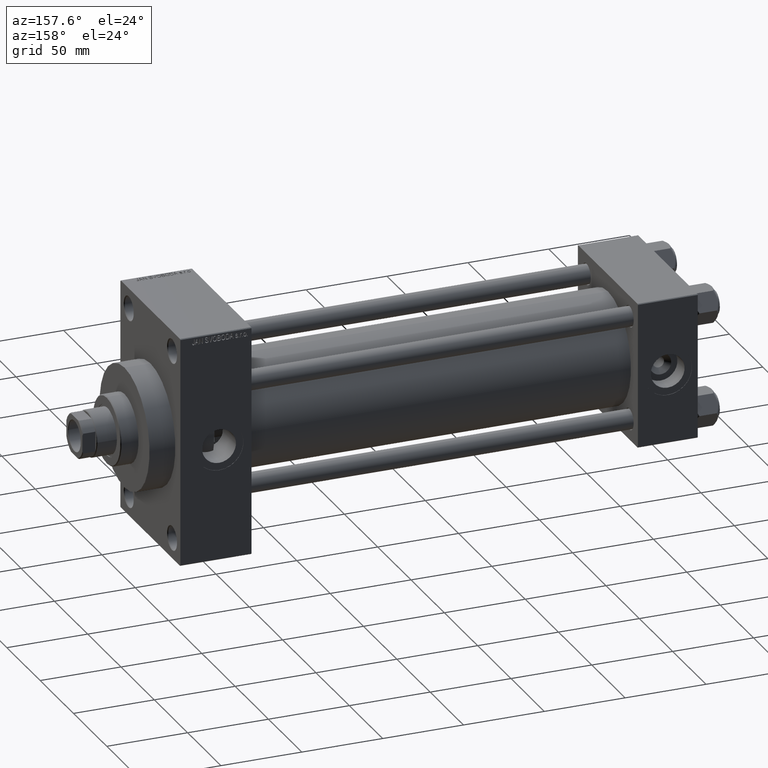
[diagram: clean part render]
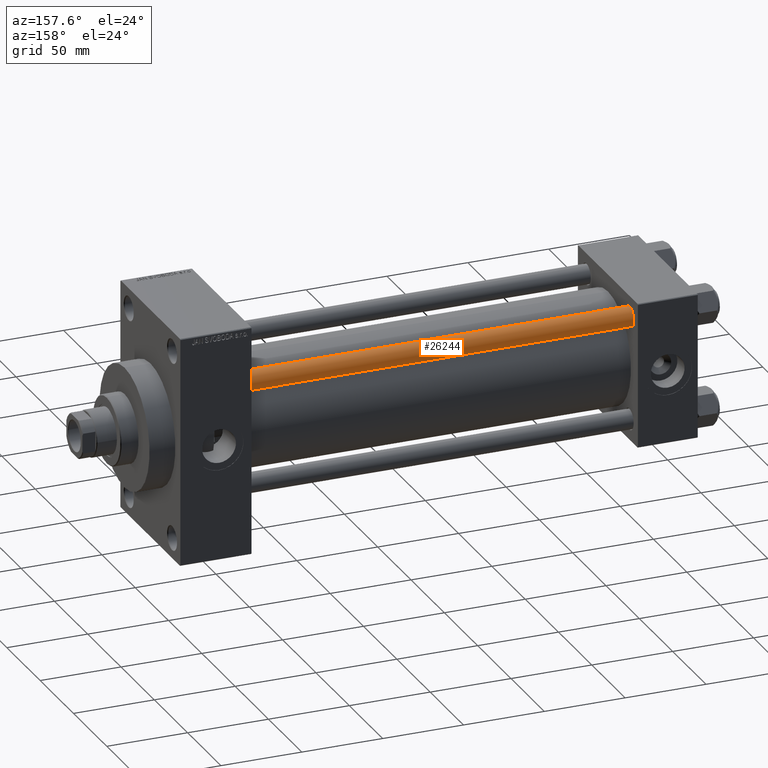
[diagram: same view with one face highlighted and labeled with its STEP entity id]
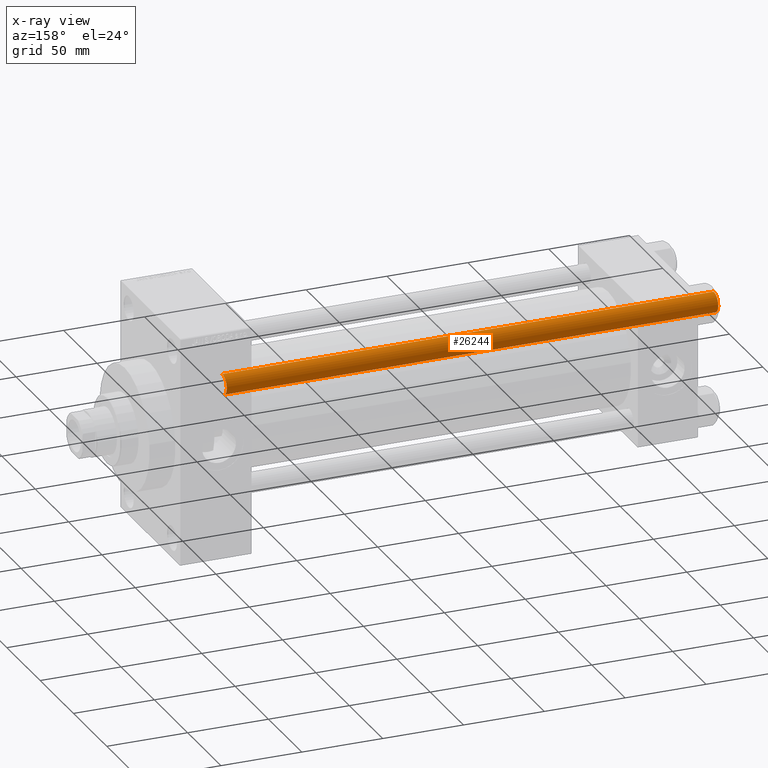
[diagram: x-ray of the same camera — body ghosted, the highlighted face saturated]
A machine part, auxiliary view. The second image highlights one B-rep face of the part: STEP entity #26244.
The next image is the same camera in x-ray: the body ghosted, the highlighted face saturated — about 0% of this face is hidden behind the body in this view.
In plain terms, the highlighted cylindrical surface (edge-blend (fillet) strip) has radius 6 mm, axis along (-1, -0, 0).
Its self-contained STEP definition (entity closure, byte-faithful):
#65 = CARTESIAN_POINT ( 'NONE',  ( 0.000000000000000000, 0.000000000000000000, 305.0000000000000000 ) ) ;
#1472 = CARTESIAN_POINT ( 'NONE',  ( -6.000000000000000888, 0.000000000000000000, 304.5000000000000000 ) ) ;
#3404 = CYLINDRICAL_SURFACE ( 'NONE', #20236, 6.000000000000000888 ) ;
#3856 = DIRECTION ( 'NONE',  ( 1.000000000000000000, 0.000000000000000000, 0.000000000000000000 ) ) ;
#5360 = CARTESIAN_POINT ( 'NONE',  ( 6.000000000000000888, 7.347880794884120722E-16, 0.5000000000000004441 ) ) ;
#5750 = AXIS2_PLACEMENT_3D ( 'NONE', #31550, #12933, #31078 ) ;
#5988 = AXIS2_PLACEMENT_3D ( 'NONE', #40145, #15058, #3856 ) ;
#8247 = EDGE_CURVE ( 'NONE', #19464, #33449, #41802, .T. ) ;
#12933 = DIRECTION ( 'NONE',  ( 0.000000000000000000, 0.000000000000000000, -1.000000000000000000 ) ) ;
#13560 = CARTESIAN_POINT ( 'NONE',  ( -6.000000000000000888, 0.000000000000000000, 0.5000000000000004441 ) ) ;
#14081 = LINE ( 'NONE', #29125, #32040 ) ;
#14850 = FACE_OUTER_BOUND ( 'NONE', #35730, .T. ) ;
#15058 = DIRECTION ( 'NONE',  ( -0.000000000000000000, -0.000000000000000000, 1.000000000000000000 ) ) ;
#16302 = ORIENTED_EDGE ( 'NONE', *, *, #8247, .T. ) ;
#16529 = ORIENTED_EDGE ( 'NONE', *, *, #42837, .F. ) ;
#17326 = ORIENTED_EDGE ( 'NONE', *, *, #46188, .T. ) ;
#18102 = LINE ( 'NONE', #29559, #38798 ) ;
#19464 = VERTEX_POINT ( 'NONE', #5360 ) ;
#20236 = AXIS2_PLACEMENT_3D ( 'NONE', #65, #21551, #32528 ) ;
#21551 = DIRECTION ( 'NONE',  ( -0.000000000000000000, -0.000000000000000000, -1.000000000000000000 ) ) ;
#24595 = CARTESIAN_POINT ( 'NONE',  ( 6.000000000000000888, 7.347880794884120722E-16, 304.5000000000000000 ) ) ;
#26244 = ADVANCED_FACE ( 'NONE', ( #14850 ), #3404, .T. ) ;
#29125 = CARTESIAN_POINT ( 'NONE',  ( 6.000000000000000888, 7.347880794884120722E-16, 305.0000000000000000 ) ) ;
#29559 = CARTESIAN_POINT ( 'NONE',  ( -6.000000000000000888, 0.000000000000000000, 305.0000000000000000 ) ) ;
#30454 = EDGE_CURVE ( 'NONE', #33005, #35109, #43881, .T. ) ;
#31078 = DIRECTION ( 'NONE',  ( 1.000000000000000000, 0.000000000000000000, 0.000000000000000000 ) ) ;
#31550 = CARTESIAN_POINT ( 'NONE',  ( 0.000000000000000000, 0.000000000000000000, 304.5000000000000000 ) ) ;
#32040 = VECTOR ( 'NONE', #36276, 1000.000000000000000 ) ;
#32528 = DIRECTION ( 'NONE',  ( -1.000000000000000000, 0.000000000000000000, 0.000000000000000000 ) ) ;
#33005 = VERTEX_POINT ( 'NONE', #1472 ) ;
#33449 = VERTEX_POINT ( 'NONE', #13560 ) ;
#35109 = VERTEX_POINT ( 'NONE', #24595 ) ;
#35552 = ORIENTED_EDGE ( 'NONE', *, *, #30454, .T. ) ;
#35730 = EDGE_LOOP ( 'NONE', ( #35552, #17326, #16302, #16529 ) ) ;
#36276 = DIRECTION ( 'NONE',  ( -0.000000000000000000, -0.000000000000000000, -1.000000000000000000 ) ) ;
#36954 = DIRECTION ( 'NONE',  ( -0.000000000000000000, -0.000000000000000000, -1.000000000000000000 ) ) ;
#38798 = VECTOR ( 'NONE', #36954, 1000.000000000000000 ) ;
#40145 = CARTESIAN_POINT ( 'NONE',  ( 0.000000000000000000, 0.000000000000000000, 0.5000000000000004441 ) ) ;
#41802 = CIRCLE ( 'NONE', #5988, 6.000000000000000888 ) ;
#42837 = EDGE_CURVE ( 'NONE', #33005, #33449, #18102, .T. ) ;
#43881 = CIRCLE ( 'NONE', #5750, 6.000000000000000888 ) ;
#46188 = EDGE_CURVE ( 'NONE', #35109, #19464, #14081, .T. ) ;